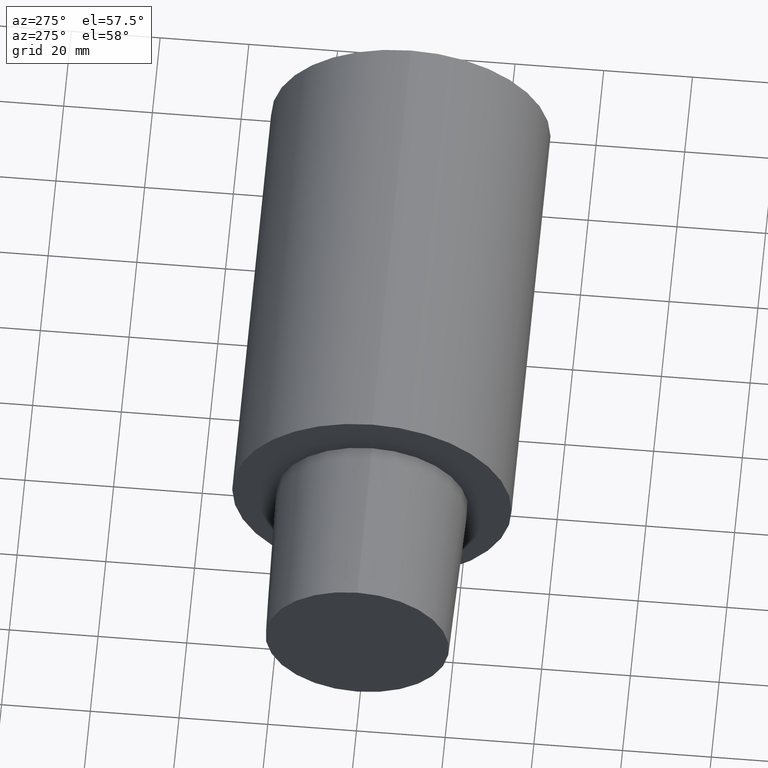
[diagram: clean part render]
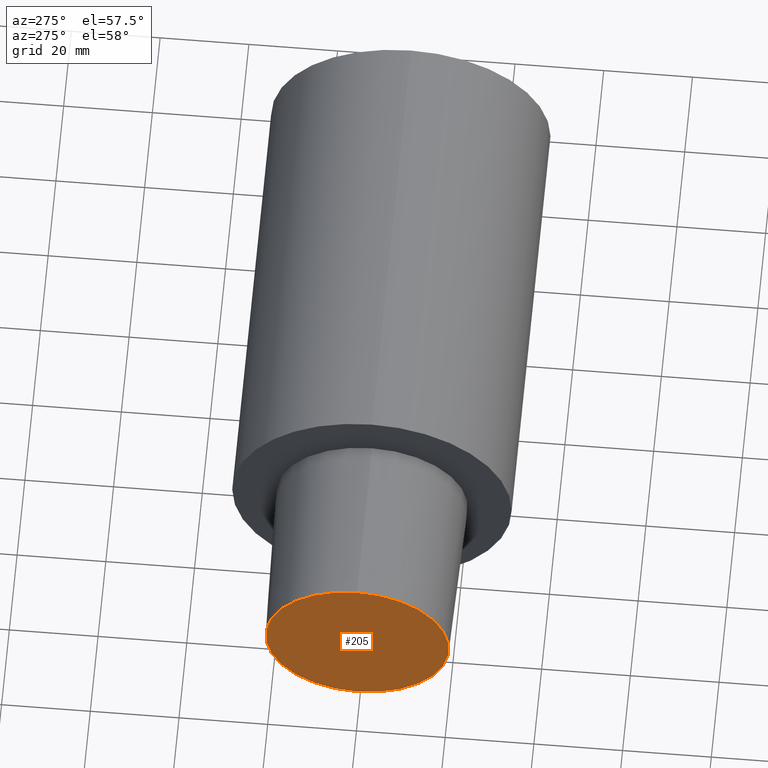
[diagram: same view with one face highlighted and labeled with its STEP entity id]
A machine part, auxiliary view. The second image highlights one B-rep face of the part: STEP entity #205.
In plain terms, the highlighted planar face has unit normal (1, 0, 0).
Its self-contained STEP definition (entity closure, byte-faithful):
#4 = CARTESIAN_POINT ( 'NONE',  ( -37.99999996124000035, 0.000000000000000000, 0.000000000000000000 ) ) ;
#11 = ORIENTED_EDGE ( 'NONE', *, *, #124, .T. ) ;
#21 = DIRECTION ( 'NONE',  ( -1.000000000000000000, 0.000000000000000000, 0.000000000000000000 ) ) ;
#22 = CARTESIAN_POINT ( 'NONE',  ( -37.99999996124000035, 20.68052847366897140, 0.000000000000000000 ) ) ;
#24 = DIRECTION ( 'NONE',  ( 0.000000000000000000, 0.000000000000000000, 1.000000000000000000 ) ) ;
#30 = AXIS2_PLACEMENT_3D ( 'NONE', #104, #155, #24 ) ;
#39 = AXIS2_PLACEMENT_3D ( 'NONE', #22, #105, #199 ) ;
#58 = VERTEX_POINT ( 'NONE', #216 ) ;
#104 = CARTESIAN_POINT ( 'NONE',  ( -37.99999996124000035, 0.000000000000000000, 0.000000000000000000 ) ) ;
#105 = DIRECTION ( 'NONE',  ( 1.000000000000000000, 0.000000000000000000, 0.000000000000000000 ) ) ;
#113 = VERTEX_POINT ( 'NONE', #180 ) ;
#117 = EDGE_LOOP ( 'NONE', ( #11, #132 ) ) ;
#123 = EDGE_CURVE ( 'NONE', #58, #113, #179, .T. ) ;
#124 = EDGE_CURVE ( 'NONE', #113, #58, #221, .T. ) ;
#126 = DIRECTION ( 'NONE',  ( 0.000000000000000000, 0.000000000000000000, 1.000000000000000000 ) ) ;
#127 = PLANE ( 'NONE',  #39 ) ;
#131 = AXIS2_PLACEMENT_3D ( 'NONE', #4, #21, #126 ) ;
#132 = ORIENTED_EDGE ( 'NONE', *, *, #123, .T. ) ;
#155 = DIRECTION ( 'NONE',  ( -1.000000000000000000, 0.000000000000000000, 0.000000000000000000 ) ) ;
#179 = CIRCLE ( 'NONE', #30, 20.68052847366897140 ) ;
#180 = CARTESIAN_POINT ( 'NONE',  ( -37.99999996124000035, 0.000000000000000000, -20.68052847366897140 ) ) ;
#199 = DIRECTION ( 'NONE',  ( 0.000000000000000000, 1.000000000000000000, 0.000000000000000000 ) ) ;
#205 = ADVANCED_FACE ( 'NONE', ( #247 ), #127, .F. ) ;
#216 = CARTESIAN_POINT ( 'NONE',  ( -37.99999996124000035, 2.590810135574270981E-15, 20.68052847366897140 ) ) ;
#221 = CIRCLE ( 'NONE', #131, 20.68052847366897140 ) ;
#247 = FACE_OUTER_BOUND ( 'NONE', #117, .T. ) ;